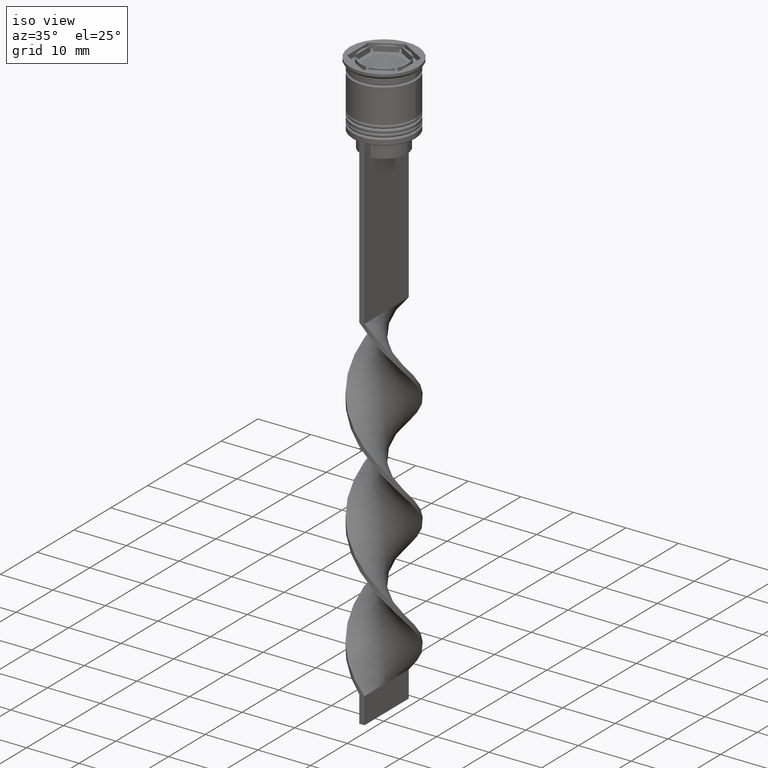
[diagram: clean part render]
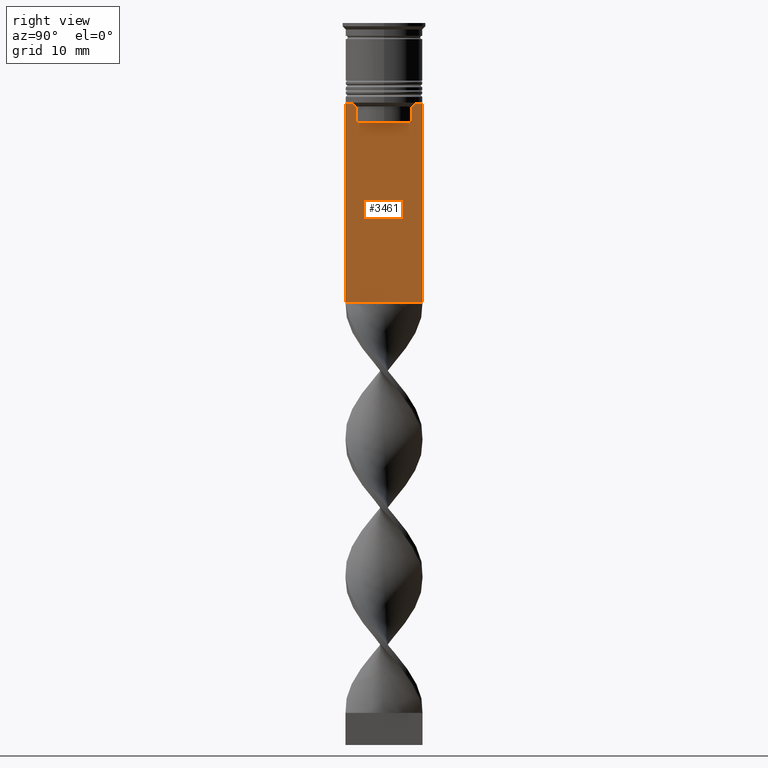
[diagram: tour spotlight — one face highlighted and labeled with its STEP entity id]
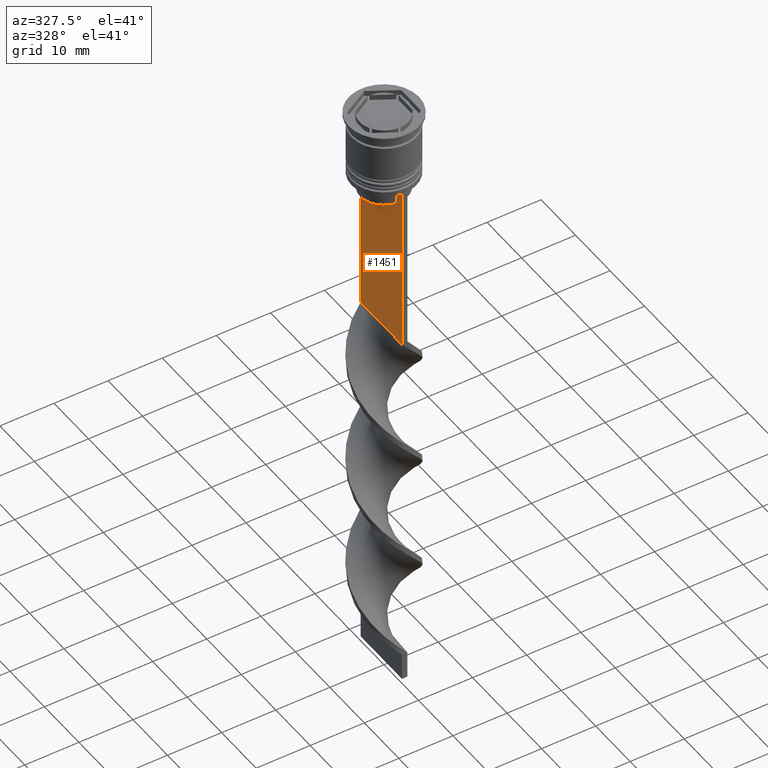
[diagram: tour spotlight — one face highlighted and labeled with its STEP entity id]
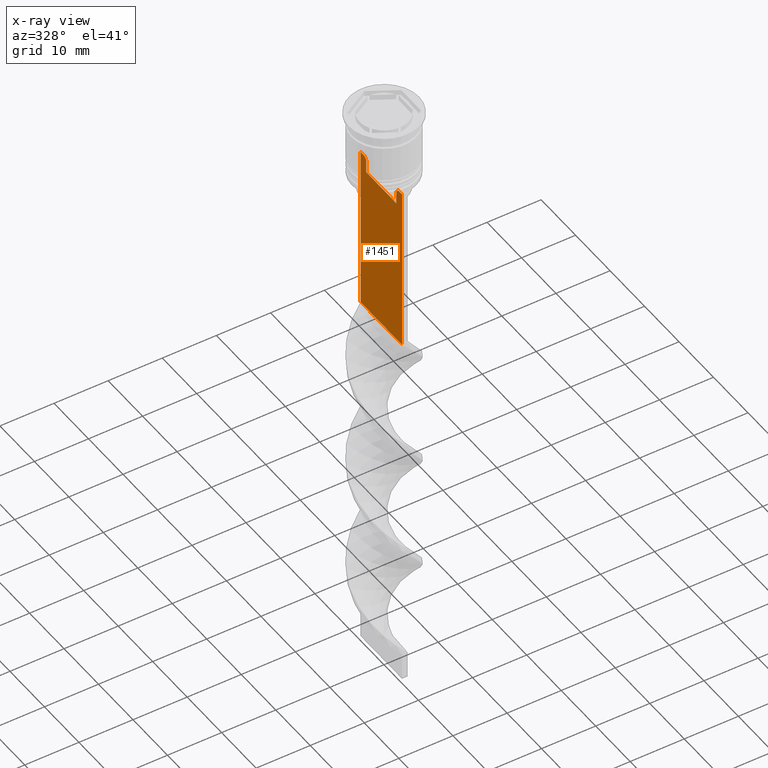
[diagram: x-ray of the same camera — body ghosted, this tour face saturated]
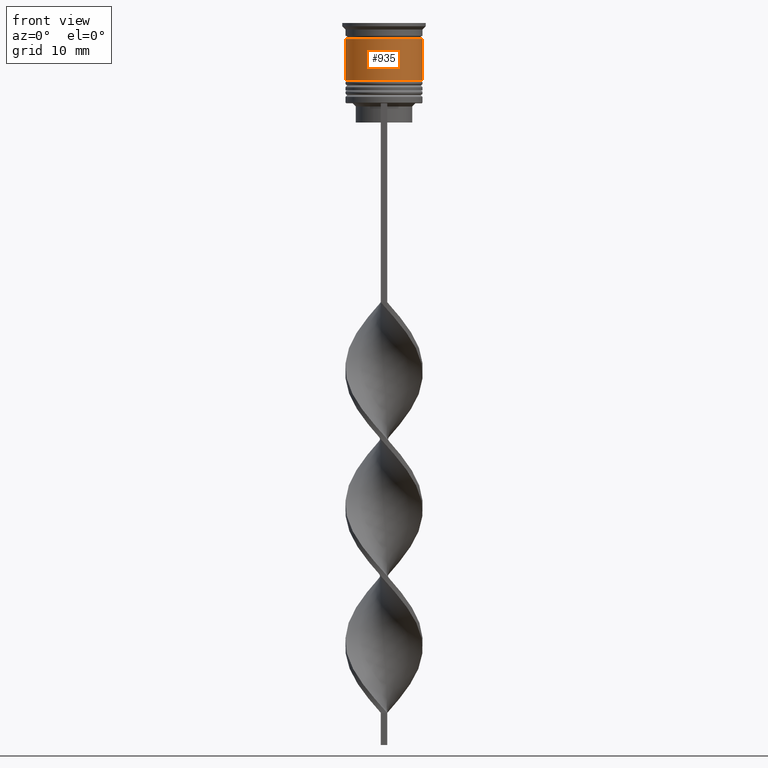
[diagram: tour spotlight — one face highlighted and labeled with its STEP entity id]
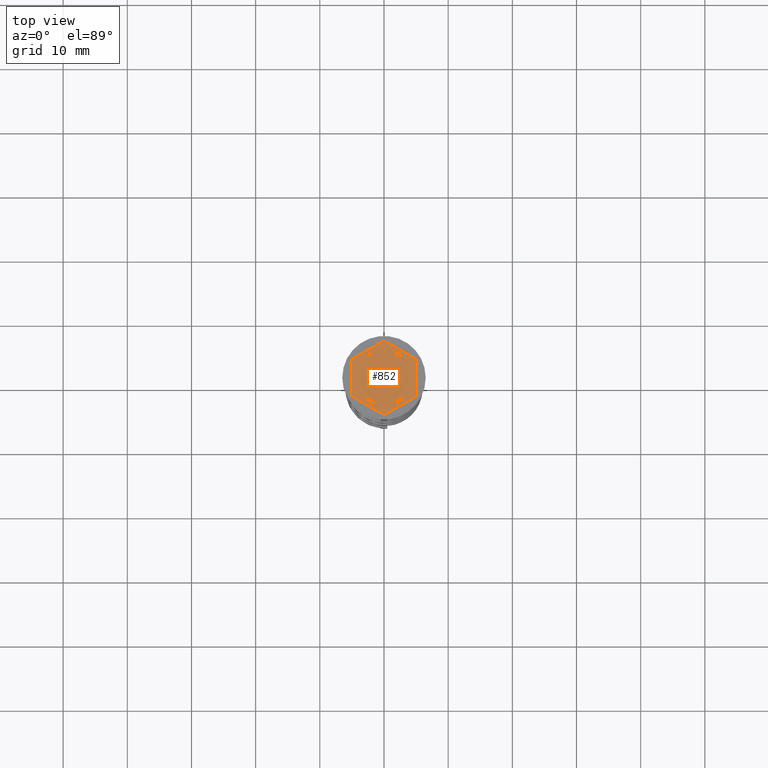
[diagram: tour spotlight — one face highlighted and labeled with its STEP entity id]
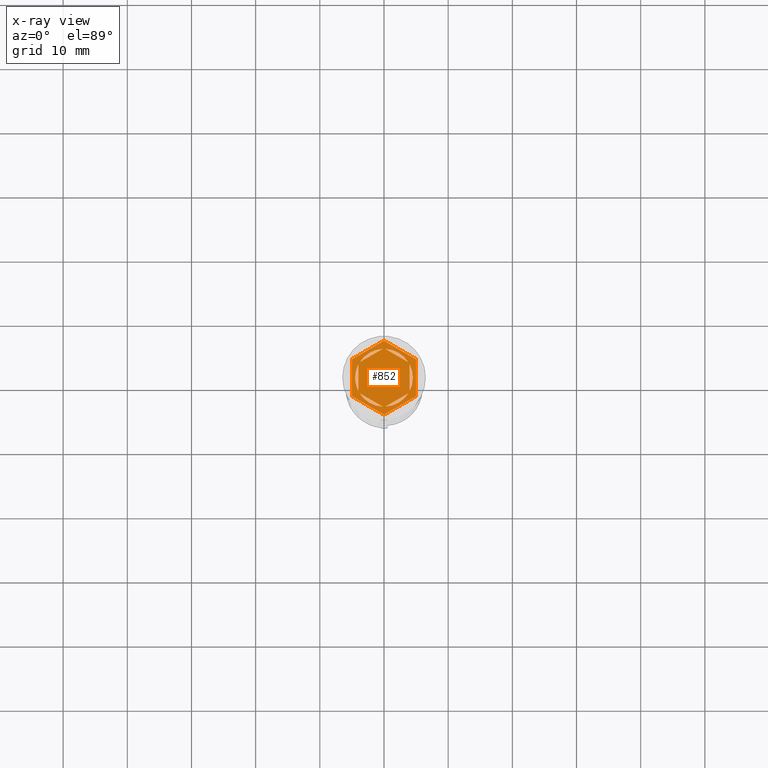
[diagram: x-ray of the same camera — body ghosted, this tour face saturated]
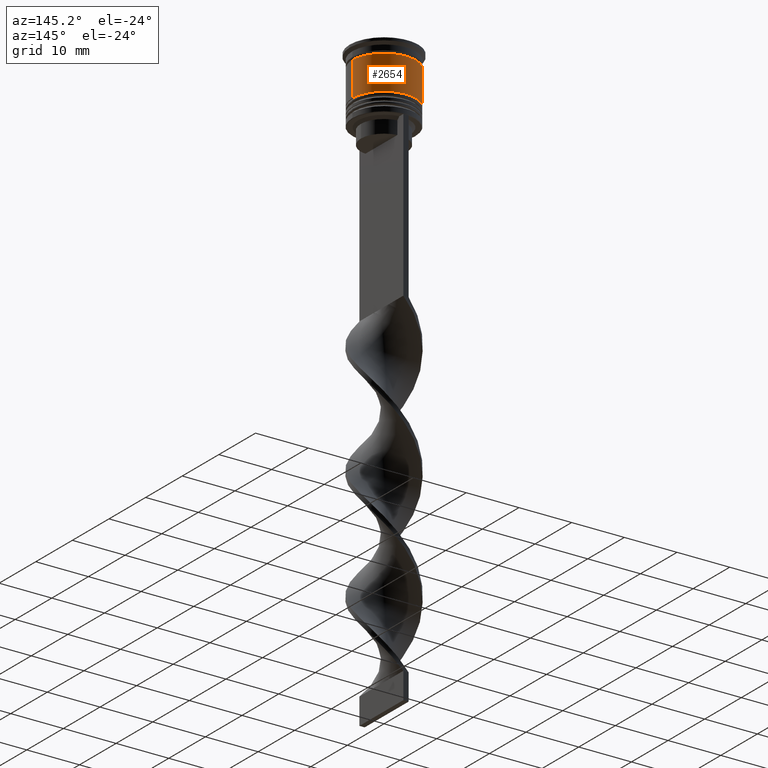
[diagram: tour spotlight — one face highlighted and labeled with its STEP entity id]
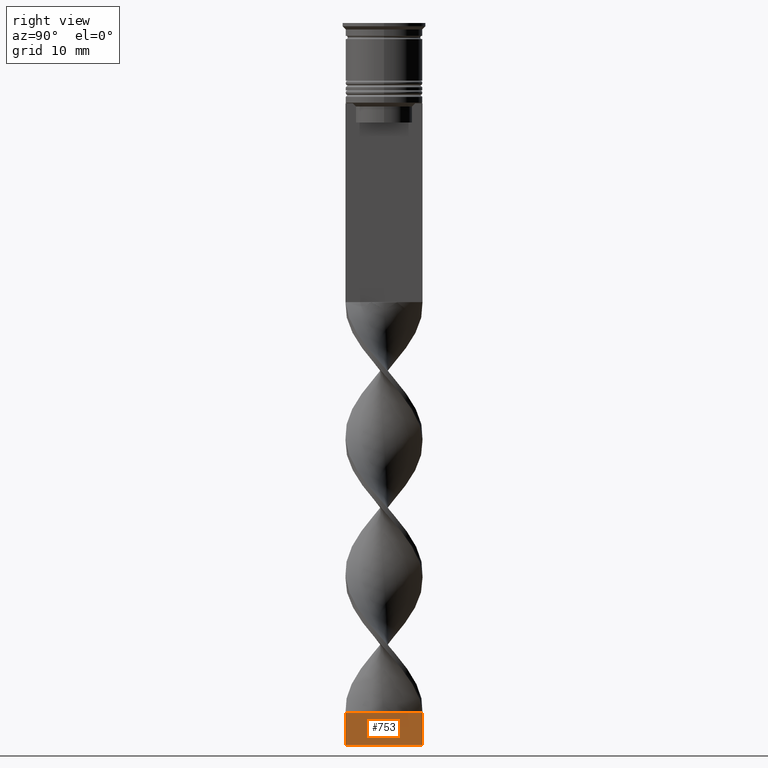
[diagram: tour spotlight — one face highlighted and labeled with its STEP entity id]
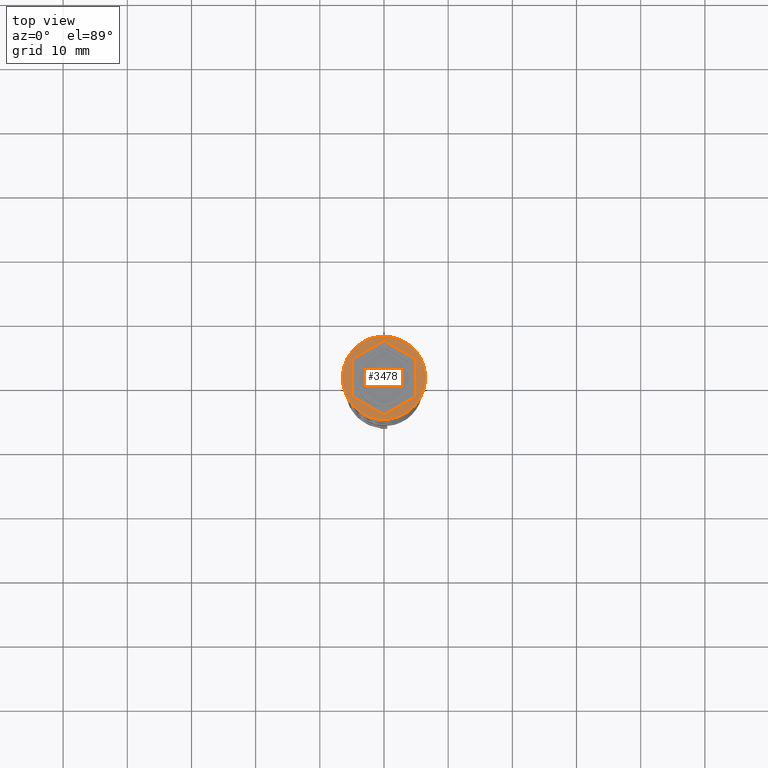
[diagram: tour spotlight — one face highlighted and labeled with its STEP entity id]
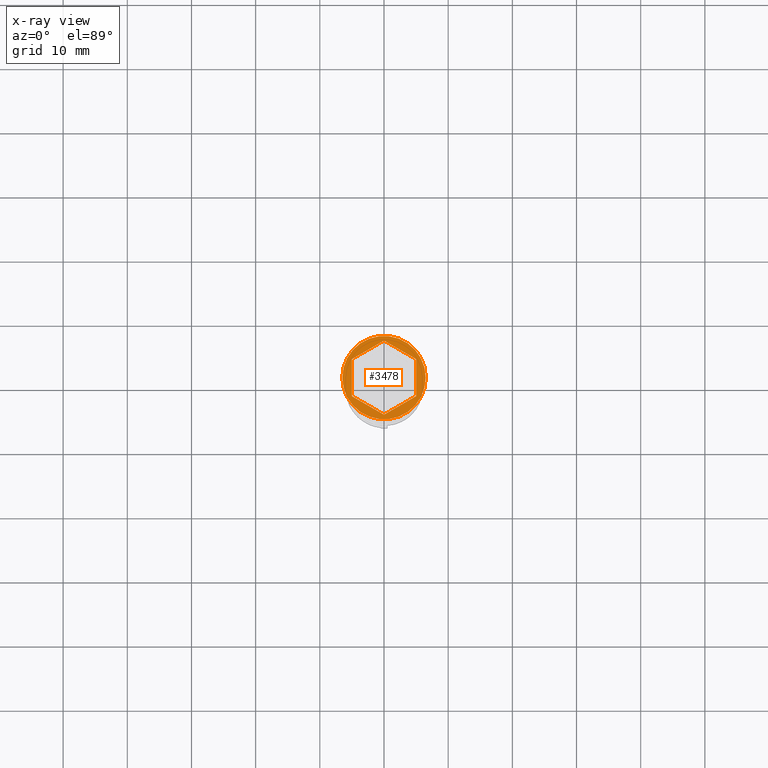
[diagram: x-ray of the same camera — body ghosted, this tour face saturated]
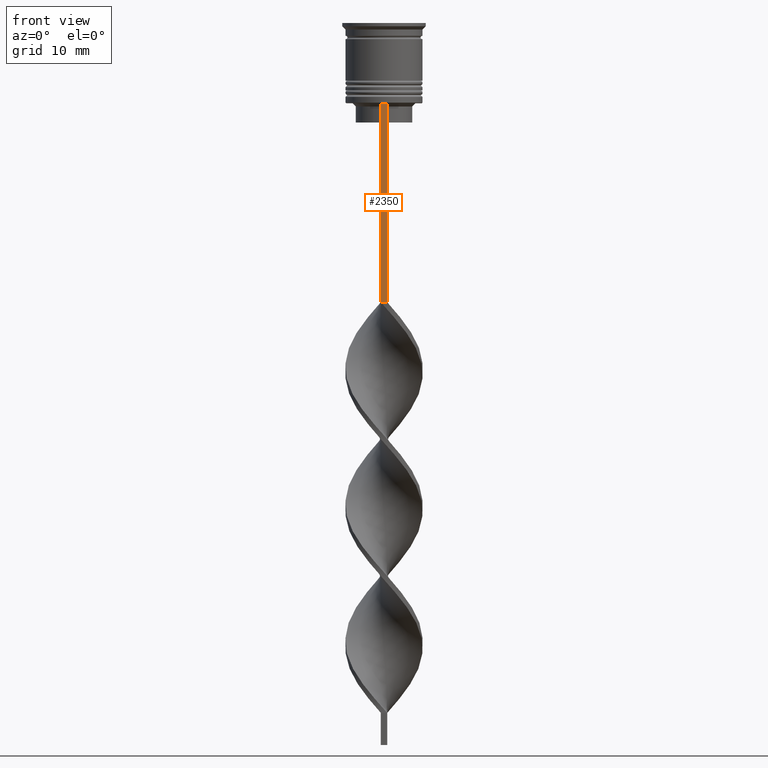
[diagram: tour spotlight — one face highlighted and labeled with its STEP entity id]
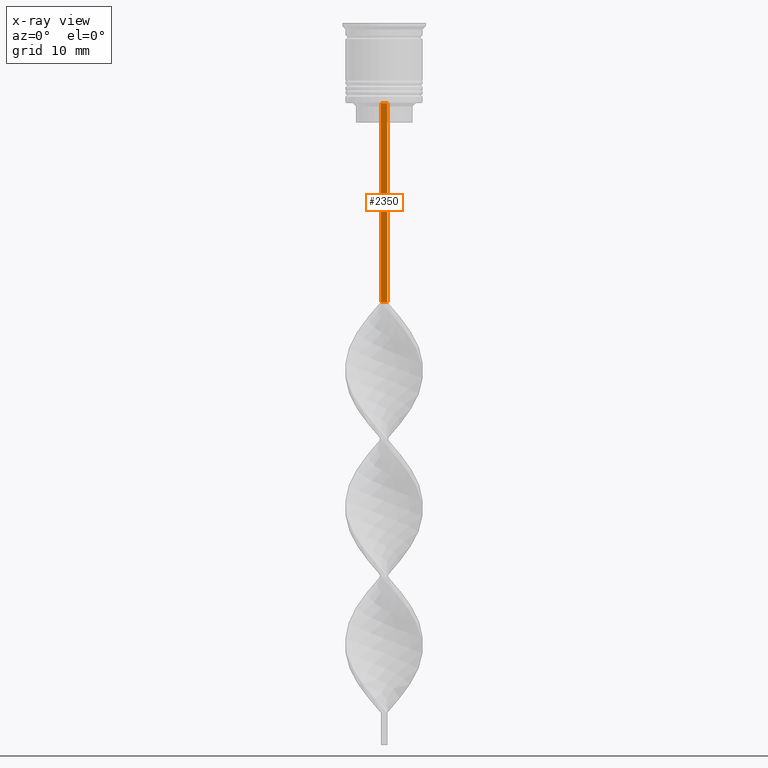
[diagram: x-ray of the same camera — body ghosted, this tour face saturated]
A machine part: a face-by-face anatomy tour. The part has 98 B-rep faces; the first image is the clean iso view, then the 8 largest visible faces are spotlighted one at a time (largest first), each with its STEP entity span.

Face 1 — right view, entity #3461. In plain terms, the highlighted planar face has unit normal (-1, 0, 0).
Definition (entity closure, byte-faithful):
#13 = CARTESIAN_POINT ( 'NONE',  ( 0.5000000000000002220, 6.000000000000000888, -43.50000000000000000 ) ) ;
#56 = ORIENTED_EDGE ( 'NONE', *, *, #2985, .T. ) ;
#80 = LINE ( 'NONE', #1415, #818 ) ;
#96 = CARTESIAN_POINT ( 'NONE',  ( 0.5000000000000002220, -4.371498598878878816, -13.00000000000000178 ) ) ;
#119 = EDGE_CURVE ( 'NONE', #781, #3070, #80, .T. ) ;
#139 = VECTOR ( 'NONE', #1219, 1000.000000000000000 ) ;
#151 = CARTESIAN_POINT ( 'NONE',  ( 0.5000000000000002220, -4.371498598878878816, 0.000000000000000000 ) ) ;
#227 = EDGE_CURVE ( 'NONE', #3070, #1343, #2359, .T. ) ;
#283 = CARTESIAN_POINT ( 'NONE',  ( 0.5000000000000002220, 4.874423042781576676, -12.50000000000000000 ) ) ;
#322 = VERTEX_POINT ( 'NONE', #1308 ) ;
#326 = ORIENTED_EDGE ( 'NONE', *, *, #2742, .T. ) ;
#347 = CARTESIAN_POINT ( 'NONE',  ( 0.5000000000000002220, 4.706831415367288329, -12.66671683478479160 ) ) ;
#352 = VECTOR ( 'NONE', #3142, 1000.000000000000000 ) ;
#444 = LINE ( 'NONE', #1009, #2346 ) ;
#445 = B_SPLINE_CURVE_WITH_KNOTS ( 'NONE', 3,
 ( #527, #550, #2749, #2769 ),
 .UNSPECIFIED., .F., .F.,
 ( 4, 4 ),
 ( 0.02089901220910808308, 0.02161421017310286019 ),
 .UNSPECIFIED. ) ;
#527 = CARTESIAN_POINT ( 'NONE',  ( 0.5000000000000002220, -4.371498598878878816, -13.00000000000000178 ) ) ;
#550 = CARTESIAN_POINT ( 'NONE',  ( 0.5000000000000002220, -4.539195586926423331, -12.83338928448044314 ) ) ;
#627 = EDGE_CURVE ( 'NONE', #3307, #781, #2087, .T. ) ;
#650 = EDGE_CURVE ( 'NONE', #2213, #2377, #2105, .T. ) ;
#718 = EDGE_CURVE ( 'NONE', #1465, #3111, #1213, .T. ) ;
#750 = ORIENTED_EDGE ( 'NONE', *, *, #718, .T. ) ;
#768 = ORIENTED_EDGE ( 'NONE', *, *, #2919, .T. ) ;
#781 = VERTEX_POINT ( 'NONE', #2478 ) ;
#804 = CARTESIAN_POINT ( 'NONE',  ( 0.5000000000000002220, 4.371498598878878816, -13.00000000000000178 ) ) ;
#818 = VECTOR ( 'NONE', #3415, 1000.000000000000000 ) ;
#888 = VECTOR ( 'NONE', #2010, 1000.000000000000000 ) ;
#962 = ORIENTED_EDGE ( 'NONE', *, *, #627, .T. ) ;
#965 = VERTEX_POINT ( 'NONE', #2309 ) ;
#980 = DIRECTION ( 'NONE',  ( -0.000000000000000000, -0.000000000000000000, 1.000000000000000000 ) ) ;
#997 = LINE ( 'NONE', #2406, #139 ) ;
#998 = VERTEX_POINT ( 'NONE', #13 ) ;
#1009 = CARTESIAN_POINT ( 'NONE',  ( 0.5000000000000002220, -6.000000000000000000, -43.50000000000000000 ) ) ;
#1058 = VECTOR ( 'NONE', #1202, 1000.000000000000000 ) ;
#1063 = DIRECTION ( 'NONE',  ( 0.000000000000000000, -1.000000000000000000, 0.000000000000000000 ) ) ;
#1126 = CARTESIAN_POINT ( 'NONE',  ( 0.5000000000000002220, 5.878775382679627626, -12.50000000000000000 ) ) ;
#1167 = VECTOR ( 'NONE', #1787, 1000.000000000000000 ) ;
#1182 = DIRECTION ( 'NONE',  ( -1.000000000000000000, 0.000000000000000000, 0.000000000000000000 ) ) ;
#1202 = DIRECTION ( 'NONE',  ( 0.000000000000000000, 0.000000000000000000, -1.000000000000000000 ) ) ;
#1213 = LINE ( 'NONE', #2641, #3032 ) ;
#1219 = DIRECTION ( 'NONE',  ( 0.000000000000000000, 0.000000000000000000, -1.000000000000000000 ) ) ;
#1240 = CARTESIAN_POINT ( 'NONE',  ( 0.5000000000000002220, -4.371498598878878816, -15.50000000000000000 ) ) ;
#1262 = DIRECTION ( 'NONE',  ( 0.000000000000000000, 1.000000000000000000, 0.000000000000000000 ) ) ;
#1308 = CARTESIAN_POINT ( 'NONE',  ( 0.5000000000000002220, -5.999999999999999112, -43.50000000000000000 ) ) ;
#1311 = CARTESIAN_POINT ( 'NONE',  ( 0.5000000000000002220, 6.000000000000000888, -12.50000000000000000 ) ) ;
#1343 = VERTEX_POINT ( 'NONE', #96 ) ;
#1351 = EDGE_CURVE ( 'NONE', #3111, #322, #2575, .T. ) ;
#1415 = CARTESIAN_POINT ( 'NONE',  ( 0.5000000000000002220, 4.399999999999999467, -15.50000000000000000 ) ) ;
#1440 = PLANE ( 'NONE',  #2470 ) ;
#1458 = CARTESIAN_POINT ( 'NONE',  ( 0.5000000000000002220, 4.539195634199896467, -12.83338923751318816 ) ) ;
#1465 = VERTEX_POINT ( 'NONE', #3310 ) ;
#1513 = CARTESIAN_POINT ( 'NONE',  ( 0.5000000000000002220, -6.000000000000000000, -12.50000000000000000 ) ) ;
#1537 = ORIENTED_EDGE ( 'NONE', *, *, #119, .T. ) ;
#1678 = FACE_OUTER_BOUND ( 'NONE', #3107, .T. ) ;
#1728 = ORIENTED_EDGE ( 'NONE', *, *, #1351, .T. ) ;
#1738 = ORIENTED_EDGE ( 'NONE', *, *, #1903, .T. ) ;
#1787 = DIRECTION ( 'NONE',  ( 0.000000000000000000, 0.000000000000000000, -1.000000000000000000 ) ) ;
#1789 = ORIENTED_EDGE ( 'NONE', *, *, #227, .T. ) ;
#1903 = EDGE_CURVE ( 'NONE', #322, #998, #444, .T. ) ;
#1977 = LINE ( 'NONE', #3084, #888 ) ;
#2009 = CARTESIAN_POINT ( 'NONE',  ( 0.5000000000000002220, -6.000000000000000000, -0.4584054212077061097 ) ) ;
#2010 = DIRECTION ( 'NONE',  ( 0.000000000000000000, -1.000000000000000000, 0.000000000000000000 ) ) ;
#2023 = CARTESIAN_POINT ( 'NONE',  ( 0.5000000000000002220, -6.000000000000000000, -0.4584054212077061097 ) ) ;
#2087 = LINE ( 'NONE', #2906, #1167 ) ;
#2105 = LINE ( 'NONE', #2379, #352 ) ;
#2211 = LINE ( 'NONE', #3301, #2586 ) ;
#2213 = VERTEX_POINT ( 'NONE', #1126 ) ;
#2243 = ORIENTED_EDGE ( 'NONE', *, *, #650, .T. ) ;
#2278 = VECTOR ( 'NONE', #980, 1000.000000000000000 ) ;
#2309 = CARTESIAN_POINT ( 'NONE',  ( 0.5000000000000002220, -4.874423042781576676, -12.50000000000000000 ) ) ;
#2346 = VECTOR ( 'NONE', #1262, 1000.000000000000000 ) ;
#2359 = LINE ( 'NONE', #151, #2278 ) ;
#2377 = VERTEX_POINT ( 'NONE', #283 ) ;
#2379 = CARTESIAN_POINT ( 'NONE',  ( 0.5000000000000002220, -6.000000000000000000, -12.50000000000000000 ) ) ;
#2406 = CARTESIAN_POINT ( 'NONE',  ( 0.5000000000000002220, 6.000000000000000888, -0.4584054212077061097 ) ) ;
#2470 = AXIS2_PLACEMENT_3D ( 'NONE', #2023, #1182, #2837 ) ;
#2472 = B_SPLINE_CURVE_WITH_KNOTS ( 'NONE', 3,
 ( #2557, #347, #1458, #2577 ),
 .UNSPECIFIED., .F., .F.,
 ( 4, 4 ),
 ( 0.008336552452178421987, 0.009045730124312839626 ),
 .UNSPECIFIED. ) ;
#2478 = CARTESIAN_POINT ( 'NONE',  ( 0.5000000000000002220, 4.371498598878878816, -15.50000000000000000 ) ) ;
#2557 = CARTESIAN_POINT ( 'NONE',  ( 0.5000000000000002220, 4.874423042781576676, -12.50000000000000000 ) ) ;
#2573 = ORIENTED_EDGE ( 'NONE', *, *, #3365, .T. ) ;
#2575 = LINE ( 'NONE', #2009, #1058 ) ;
#2577 = CARTESIAN_POINT ( 'NONE',  ( 0.5000000000000002220, 4.371498598878878816, -13.00000000000000178 ) ) ;
#2586 = VECTOR ( 'NONE', #1063, 1000.000000000000000 ) ;
#2621 = DIRECTION ( 'NONE',  ( 0.000000000000000000, -1.000000000000000000, 0.000000000000000000 ) ) ;
#2641 = CARTESIAN_POINT ( 'NONE',  ( 0.5000000000000002220, -6.000000000000000000, -12.50000000000000000 ) ) ;
#2742 = EDGE_CURVE ( 'NONE', #965, #1465, #2211, .T. ) ;
#2749 = CARTESIAN_POINT ( 'NONE',  ( 0.5000000000000002220, -4.706831372970962768, -12.66671687695981774 ) ) ;
#2769 = CARTESIAN_POINT ( 'NONE',  ( 0.5000000000000002220, -4.874423042781576676, -12.50000000000000000 ) ) ;
#2837 = DIRECTION ( 'NONE',  ( 0.000000000000000000, 0.000000000000000000, 1.000000000000000000 ) ) ;
#2906 = CARTESIAN_POINT ( 'NONE',  ( 0.5000000000000002220, 4.371498598878878816, 0.000000000000000000 ) ) ;
#2919 = EDGE_CURVE ( 'NONE', #3302, #2213, #1977, .T. ) ;
#2985 = EDGE_CURVE ( 'NONE', #2377, #3307, #2472, .T. ) ;
#3032 = VECTOR ( 'NONE', #2621, 1000.000000000000000 ) ;
#3070 = VERTEX_POINT ( 'NONE', #1240 ) ;
#3079 = EDGE_CURVE ( 'NONE', #3302, #998, #997, .T. ) ;
#3084 = CARTESIAN_POINT ( 'NONE',  ( 0.5000000000000002220, -6.000000000000000000, -12.50000000000000000 ) ) ;
#3107 = EDGE_LOOP ( 'NONE', ( #2243, #56, #962, #1537, #1789, #2573, #326, #750, #1728, #1738, #3288, #768 ) ) ;
#3111 = VERTEX_POINT ( 'NONE', #1513 ) ;
#3142 = DIRECTION ( 'NONE',  ( 0.000000000000000000, -1.000000000000000000, 0.000000000000000000 ) ) ;
#3288 = ORIENTED_EDGE ( 'NONE', *, *, #3079, .F. ) ;
#3301 = CARTESIAN_POINT ( 'NONE',  ( 0.5000000000000002220, -6.000000000000000000, -12.50000000000000000 ) ) ;
#3302 = VERTEX_POINT ( 'NONE', #1311 ) ;
#3307 = VERTEX_POINT ( 'NONE', #804 ) ;
#3310 = CARTESIAN_POINT ( 'NONE',  ( 0.5000000000000002220, -5.878775382679627626, -12.50000000000000000 ) ) ;
#3365 = EDGE_CURVE ( 'NONE', #1343, #965, #445, .T. ) ;
#3415 = DIRECTION ( 'NONE',  ( 0.000000000000000000, -1.000000000000000000, 0.000000000000000000 ) ) ;
#3461 = ADVANCED_FACE ( 'NONE', ( #1678 ), #1440, .F. ) ;

Face 2 — auxiliary view, entity #1451. An x-ray twin of the same camera follows (body ghosted, this face saturated) — the face is partly hidden behind the body. In plain terms, the highlighted planar face has unit normal (-1, 0, 0).
Definition (entity closure, byte-faithful):
#5 = EDGE_CURVE ( 'NONE', #2252, #2817, #107, .T. ) ;
#37 = LINE ( 'NONE', #841, #3256 ) ;
#107 = B_SPLINE_CURVE_WITH_KNOTS ( 'NONE', 3,
 ( #299, #3152, #1206, #2043 ),
 .UNSPECIFIED., .F., .F.,
 ( 4, 4 ),
 ( 0.008336552452178418518, 0.009045730124312837891 ),
 .UNSPECIFIED. ) ;
#214 = CARTESIAN_POINT ( 'NONE',  ( -0.4999999999999997780, 4.874423042781576676, -12.50000000000000000 ) ) ;
#278 = LINE ( 'NONE', #863, #2460 ) ;
#280 = ORIENTED_EDGE ( 'NONE', *, *, #1296, .F. ) ;
#295 = EDGE_CURVE ( 'NONE', #2554, #462, #3195, .T. ) ;
#299 = CARTESIAN_POINT ( 'NONE',  ( -0.4999999999999997780, 4.874423042781576676, -12.50000000000000000 ) ) ;
#417 = DIRECTION ( 'NONE',  ( -0.000000000000000000, -0.000000000000000000, 1.000000000000000000 ) ) ;
#461 = CARTESIAN_POINT ( 'NONE',  ( -0.4999999999999997780, -6.000000000000000000, -12.50000000000000000 ) ) ;
#462 = VERTEX_POINT ( 'NONE', #2021 ) ;
#566 = EDGE_CURVE ( 'NONE', #2817, #844, #37, .T. ) ;
#567 = DIRECTION ( 'NONE',  ( 0.000000000000000000, 0.000000000000000000, -1.000000000000000000 ) ) ;
#575 = ORIENTED_EDGE ( 'NONE', *, *, #5, .F. ) ;
#590 = EDGE_CURVE ( 'NONE', #1105, #2180, #2783, .T. ) ;
#602 = CARTESIAN_POINT ( 'NONE',  ( -0.4999999999999997780, -6.000000000000000000, -12.50000000000000000 ) ) ;
#606 = EDGE_LOOP ( 'NONE', ( #575, #2842, #2683, #3563, #280, #3465, #1070, #2978, #2744, #1129, #775, #3303 ) ) ;
#644 = CARTESIAN_POINT ( 'NONE',  ( -0.4999999999999997780, 4.399999999999999467, -15.50000000000000000 ) ) ;
#757 = DIRECTION ( 'NONE',  ( 0.000000000000000000, 0.000000000000000000, -1.000000000000000000 ) ) ;
#775 = ORIENTED_EDGE ( 'NONE', *, *, #2548, .F. ) ;
#807 = CARTESIAN_POINT ( 'NONE',  ( -0.4999999999999997780, -6.000000000000000000, -12.50000000000000000 ) ) ;
#810 = EDGE_CURVE ( 'NONE', #2180, #2252, #2668, .T. ) ;
#841 = CARTESIAN_POINT ( 'NONE',  ( -0.4999999999999997780, 4.371498598878878816, 0.000000000000000000 ) ) ;
#844 = VERTEX_POINT ( 'NONE', #1087 ) ;
#860 = DIRECTION ( 'NONE',  ( -1.000000000000000000, 0.000000000000000000, 0.000000000000000000 ) ) ;
#863 = CARTESIAN_POINT ( 'NONE',  ( -0.4999999999999997780, -6.000000000000000000, -12.50000000000000000 ) ) ;
#917 = EDGE_CURVE ( 'NONE', #1105, #3364, #1342, .T. ) ;
#953 = LINE ( 'NONE', #1128, #2746 ) ;
#957 = B_SPLINE_CURVE_WITH_KNOTS ( 'NONE', 3,
 ( #2229, #3339, #3065, #1354 ),
 .UNSPECIFIED., .F., .F.,
 ( 4, 4 ),
 ( 0.02089901220910806920, 0.02161421017310284978 ),
 .UNSPECIFIED. ) ;
#1070 = ORIENTED_EDGE ( 'NONE', *, *, #1744, .F. ) ;
#1087 = CARTESIAN_POINT ( 'NONE',  ( -0.4999999999999997780, 4.371498598878878816, -15.50000000000000000 ) ) ;
#1105 = VERTEX_POINT ( 'NONE', #2884 ) ;
#1116 = DIRECTION ( 'NONE',  ( 0.000000000000000000, 1.000000000000000000, 0.000000000000000000 ) ) ;
#1128 = CARTESIAN_POINT ( 'NONE',  ( -0.4999999999999997780, -6.000000000000000000, -0.4584054212077061097 ) ) ;
#1129 = ORIENTED_EDGE ( 'NONE', *, *, #295, .F. ) ;
#1206 = CARTESIAN_POINT ( 'NONE',  ( -0.4999999999999997780, 4.539195634199897356, -12.83338923751318816 ) ) ;
#1225 = EDGE_CURVE ( 'NONE', #3319, #2774, #278, .T. ) ;
#1296 = EDGE_CURVE ( 'NONE', #3313, #3364, #1938, .T. ) ;
#1312 = VERTEX_POINT ( 'NONE', #807 ) ;
#1316 = EDGE_CURVE ( 'NONE', #462, #3319, #957, .T. ) ;
#1342 = LINE ( 'NONE', #1558, #1636 ) ;
#1354 = CARTESIAN_POINT ( 'NONE',  ( -0.4999999999999997780, -4.874423042781576676, -12.50000000000000000 ) ) ;
#1403 = FACE_OUTER_BOUND ( 'NONE', #606, .T. ) ;
#1409 = AXIS2_PLACEMENT_3D ( 'NONE', #3552, #860, #3591 ) ;
#1416 = VECTOR ( 'NONE', #1727, 1000.000000000000000 ) ;
#1451 = ADVANCED_FACE ( 'NONE', ( #1403 ), #2443, .T. ) ;
#1466 = VECTOR ( 'NONE', #2344, 1000.000000000000000 ) ;
#1558 = CARTESIAN_POINT ( 'NONE',  ( -0.4999999999999997780, 6.000000000000000888, -0.4584054212077061097 ) ) ;
#1636 = VECTOR ( 'NONE', #757, 1000.000000000000000 ) ;
#1727 = DIRECTION ( 'NONE',  ( 0.000000000000000000, -1.000000000000000000, 0.000000000000000000 ) ) ;
#1744 = EDGE_CURVE ( 'NONE', #2774, #1312, #2360, .T. ) ;
#1759 = DIRECTION ( 'NONE',  ( 0.000000000000000000, 0.000000000000000000, -1.000000000000000000 ) ) ;
#1772 = EDGE_CURVE ( 'NONE', #1312, #3313, #953, .T. ) ;
#1938 = LINE ( 'NONE', #3083, #2394 ) ;
#2021 = CARTESIAN_POINT ( 'NONE',  ( -0.4999999999999997780, -4.371498598878878816, -13.00000000000000178 ) ) ;
#2043 = CARTESIAN_POINT ( 'NONE',  ( -0.4999999999999997780, 4.371498598878878816, -13.00000000000000178 ) ) ;
#2048 = CARTESIAN_POINT ( 'NONE',  ( -0.4999999999999997780, -4.371498598878878816, -15.50000000000000000 ) ) ;
#2099 = VECTOR ( 'NONE', #3271, 1000.000000000000000 ) ;
#2180 = VERTEX_POINT ( 'NONE', #2999 ) ;
#2229 = CARTESIAN_POINT ( 'NONE',  ( -0.4999999999999997780, -4.371498598878878816, -13.00000000000000178 ) ) ;
#2250 = DIRECTION ( 'NONE',  ( 0.000000000000000000, -1.000000000000000000, 0.000000000000000000 ) ) ;
#2252 = VERTEX_POINT ( 'NONE', #214 ) ;
#2310 = LINE ( 'NONE', #644, #1416 ) ;
#2344 = DIRECTION ( 'NONE',  ( 0.000000000000000000, -1.000000000000000000, 0.000000000000000000 ) ) ;
#2360 = LINE ( 'NONE', #3471, #1466 ) ;
#2394 = VECTOR ( 'NONE', #1116, 1000.000000000000000 ) ;
#2423 = CARTESIAN_POINT ( 'NONE',  ( -0.4999999999999997780, -4.874423042781576676, -12.50000000000000000 ) ) ;
#2443 = PLANE ( 'NONE',  #1409 ) ;
#2460 = VECTOR ( 'NONE', #2250, 1000.000000000000000 ) ;
#2548 = EDGE_CURVE ( 'NONE', #844, #2554, #2310, .T. ) ;
#2554 = VERTEX_POINT ( 'NONE', #2048 ) ;
#2668 = LINE ( 'NONE', #461, #2099 ) ;
#2683 = ORIENTED_EDGE ( 'NONE', *, *, #590, .F. ) ;
#2744 = ORIENTED_EDGE ( 'NONE', *, *, #1316, .F. ) ;
#2746 = VECTOR ( 'NONE', #1759, 1000.000000000000000 ) ;
#2755 = CARTESIAN_POINT ( 'NONE',  ( -0.4999999999999997780, 4.371498598878878816, -13.00000000000000178 ) ) ;
#2774 = VERTEX_POINT ( 'NONE', #3560 ) ;
#2783 = LINE ( 'NONE', #602, #3377 ) ;
#2817 = VERTEX_POINT ( 'NONE', #2755 ) ;
#2821 = DIRECTION ( 'NONE',  ( 0.000000000000000000, -1.000000000000000000, 0.000000000000000000 ) ) ;
#2842 = ORIENTED_EDGE ( 'NONE', *, *, #810, .F. ) ;
#2884 = CARTESIAN_POINT ( 'NONE',  ( -0.4999999999999997780, 6.000000000000001776, -12.50000000000000000 ) ) ;
#2978 = ORIENTED_EDGE ( 'NONE', *, *, #1225, .F. ) ;
#2999 = CARTESIAN_POINT ( 'NONE',  ( -0.4999999999999997780, 5.878775382679627626, -12.50000000000000000 ) ) ;
#3065 = CARTESIAN_POINT ( 'NONE',  ( -0.4999999999999997780, -4.706831372970964544, -12.66671687695981596 ) ) ;
#3083 = CARTESIAN_POINT ( 'NONE',  ( -0.4999999999999997780, -6.000000000000000000, -43.50000000000000000 ) ) ;
#3088 = VECTOR ( 'NONE', #417, 1000.000000000000000 ) ;
#3152 = CARTESIAN_POINT ( 'NONE',  ( -0.4999999999999997780, 4.706831415367290106, -12.66671683478478982 ) ) ;
#3195 = LINE ( 'NONE', #3480, #3088 ) ;
#3232 = CARTESIAN_POINT ( 'NONE',  ( -0.4999999999999997780, -6.000000000000000000, -43.50000000000000000 ) ) ;
#3256 = VECTOR ( 'NONE', #567, 1000.000000000000000 ) ;
#3271 = DIRECTION ( 'NONE',  ( 0.000000000000000000, -1.000000000000000000, 0.000000000000000000 ) ) ;
#3303 = ORIENTED_EDGE ( 'NONE', *, *, #566, .F. ) ;
#3313 = VERTEX_POINT ( 'NONE', #3232 ) ;
#3319 = VERTEX_POINT ( 'NONE', #2423 ) ;
#3339 = CARTESIAN_POINT ( 'NONE',  ( -0.4999999999999997780, -4.539195586926424220, -12.83338928448044136 ) ) ;
#3364 = VERTEX_POINT ( 'NONE', #3534 ) ;
#3377 = VECTOR ( 'NONE', #2821, 1000.000000000000000 ) ;
#3465 = ORIENTED_EDGE ( 'NONE', *, *, #1772, .F. ) ;
#3471 = CARTESIAN_POINT ( 'NONE',  ( -0.4999999999999997780, -6.000000000000000000, -12.50000000000000000 ) ) ;
#3480 = CARTESIAN_POINT ( 'NONE',  ( -0.4999999999999997780, -4.371498598878878816, 0.000000000000000000 ) ) ;
#3534 = CARTESIAN_POINT ( 'NONE',  ( -0.4999999999999997780, 6.000000000000000888, -43.50000000000000000 ) ) ;
#3552 = CARTESIAN_POINT ( 'NONE',  ( -0.4999999999999997780, -6.000000000000000000, -0.4584054212077061097 ) ) ;
#3560 = CARTESIAN_POINT ( 'NONE',  ( -0.4999999999999997780, -5.878775382679627626, -12.50000000000000000 ) ) ;
#3563 = ORIENTED_EDGE ( 'NONE', *, *, #917, .T. ) ;
#3591 = DIRECTION ( 'NONE',  ( 0.000000000000000000, 0.000000000000000000, 1.000000000000000000 ) ) ;

Face 3 — front view, entity #935. In plain terms, the highlighted cylindrical surface (partial cylindrical patch) has radius 6 mm, axis along (-0, -0, 1).
Definition (entity closure, byte-faithful):
#115 = DIRECTION ( 'NONE',  ( -0.000000000000000000, -0.000000000000000000, 1.000000000000000000 ) ) ;
#485 = ORIENTED_EDGE ( 'NONE', *, *, #2612, .F. ) ;
#521 = DIRECTION ( 'NONE',  ( -0.000000000000000000, -0.000000000000000000, 1.000000000000000000 ) ) ;
#552 = VERTEX_POINT ( 'NONE', #3354 ) ;
#707 = CIRCLE ( 'NONE', #3146, 6.000000000000000888 ) ;
#713 = CIRCLE ( 'NONE', #2107, 5.999999999999999112 ) ;
#777 = VECTOR ( 'NONE', #115, 1000.000000000000000 ) ;
#935 = ADVANCED_FACE ( 'NONE', ( #1324 ), #3291, .T. ) ;
#1210 = LINE ( 'NONE', #2831, #3450 ) ;
#1324 = FACE_OUTER_BOUND ( 'NONE', #2490, .T. ) ;
#1446 = DIRECTION ( 'NONE',  ( -0.000000000000000000, -0.000000000000000000, 1.000000000000000000 ) ) ;
#1503 = CARTESIAN_POINT ( 'NONE',  ( 0.000000000000000000, 0.000000000000000000, -2.500000000000000444 ) ) ;
#1510 = VERTEX_POINT ( 'NONE', #2458 ) ;
#1536 = CARTESIAN_POINT ( 'NONE',  ( -6.000000000000000000, 7.347880794884119736E-16, 0.000000000000000000 ) ) ;
#1607 = EDGE_CURVE ( 'NONE', #552, #3268, #707, .T. ) ;
#1679 = VERTEX_POINT ( 'NONE', #2630 ) ;
#1865 = ORIENTED_EDGE ( 'NONE', *, *, #3078, .F. ) ;
#1950 = DIRECTION ( 'NONE',  ( 1.000000000000000000, 0.000000000000000000, 0.000000000000000000 ) ) ;
#2041 = AXIS2_PLACEMENT_3D ( 'NONE', #3016, #521, #1950 ) ;
#2065 = LINE ( 'NONE', #1536, #777 ) ;
#2107 = AXIS2_PLACEMENT_3D ( 'NONE', #1503, #3361, #2270 ) ;
#2142 = CARTESIAN_POINT ( 'NONE',  ( 0.000000000000000000, 0.000000000000000000, -9.000000000000001776 ) ) ;
#2268 = ORIENTED_EDGE ( 'NONE', *, *, #1607, .T. ) ;
#2270 = DIRECTION ( 'NONE',  ( 1.000000000000000000, 0.000000000000000000, 0.000000000000000000 ) ) ;
#2418 = DIRECTION ( 'NONE',  ( -0.000000000000000000, -0.000000000000000000, 1.000000000000000000 ) ) ;
#2458 = CARTESIAN_POINT ( 'NONE',  ( 5.999999999999999112, 0.000000000000000000, -2.500000000000000444 ) ) ;
#2490 = EDGE_LOOP ( 'NONE', ( #1865, #2268, #3535, #485 ) ) ;
#2591 = EDGE_CURVE ( 'NONE', #3268, #1510, #1210, .T. ) ;
#2612 = EDGE_CURVE ( 'NONE', #1679, #1510, #713, .T. ) ;
#2630 = CARTESIAN_POINT ( 'NONE',  ( -5.999999999999999112, 7.347880794884118750E-16, -2.500000000000000444 ) ) ;
#2831 = CARTESIAN_POINT ( 'NONE',  ( 6.000000000000000000, 0.000000000000000000, 0.000000000000000000 ) ) ;
#2954 = DIRECTION ( 'NONE',  ( 1.000000000000000000, 0.000000000000000000, 0.000000000000000000 ) ) ;
#3016 = CARTESIAN_POINT ( 'NONE',  ( 0.000000000000000000, 0.000000000000000000, 0.000000000000000000 ) ) ;
#3078 = EDGE_CURVE ( 'NONE', #552, #1679, #2065, .T. ) ;
#3146 = AXIS2_PLACEMENT_3D ( 'NONE', #2142, #2418, #2954 ) ;
#3268 = VERTEX_POINT ( 'NONE', #3311 ) ;
#3291 = CYLINDRICAL_SURFACE ( 'NONE', #2041, 6.000000000000000000 ) ;
#3311 = CARTESIAN_POINT ( 'NONE',  ( 6.000000000000000888, 0.000000000000000000, -9.000000000000001776 ) ) ;
#3354 = CARTESIAN_POINT ( 'NONE',  ( -6.000000000000001776, 7.347880794884121708E-16, -9.000000000000001776 ) ) ;
#3361 = DIRECTION ( 'NONE',  ( -0.000000000000000000, -0.000000000000000000, 1.000000000000000000 ) ) ;
#3450 = VECTOR ( 'NONE', #1446, 1000.000000000000000 ) ;
#3535 = ORIENTED_EDGE ( 'NONE', *, *, #2591, .T. ) ;

Face 4 — top view, entity #852. An x-ray twin of the same camera follows (body ghosted, this face saturated) — the face is partly hidden behind the body. In plain terms, the highlighted planar face has unit normal (0, 0, 1).
Definition (entity closure, byte-faithful):
#9 = CARTESIAN_POINT ( 'NONE',  ( -5.000000000000000888, 2.886751345948128655, -1.000000000000000000 ) ) ;
#32 = LINE ( 'NONE', #9, #2052 ) ;
#81 = DIRECTION ( 'NONE',  ( 0.8660254037844385966, 0.4999999999999998890, 0.000000000000000000 ) ) ;
#97 = CARTESIAN_POINT ( 'NONE',  ( 5.000000000000000000, -2.886751345948128655, -1.000000000000000000 ) ) ;
#100 = DIRECTION ( 'NONE',  ( 0.000000000000000000, 0.000000000000000000, 1.000000000000000000 ) ) ;
#105 = VERTEX_POINT ( 'NONE', #2580 ) ;
#116 = CARTESIAN_POINT ( 'NONE',  ( -5.000000000000000888, -2.886751345948129543, -1.000000000000000000 ) ) ;
#120 = EDGE_CURVE ( 'NONE', #3027, #105, #3360, .T. ) ;
#134 = DIRECTION ( 'NONE',  ( 0.8660254037844387076, -0.4999999999999997224, 0.000000000000000000 ) ) ;
#143 = EDGE_CURVE ( 'NONE', #612, #2995, #642, .T. ) ;
#209 = ORIENTED_EDGE ( 'NONE', *, *, #958, .F. ) ;
#216 = FACE_OUTER_BOUND ( 'NONE', #348, .T. ) ;
#221 = CARTESIAN_POINT ( 'NONE',  ( 3.999999999999999112, -2.061552812808833846, -1.000000000000000888 ) ) ;
#253 = FACE_BOUND ( 'NONE', #1590, .T. ) ;
#267 = CARTESIAN_POINT ( 'NONE',  ( 0.000000000000000000, 0.000000000000000000, -1.000000000000000000 ) ) ;
#291 = CARTESIAN_POINT ( 'NONE',  ( 5.000000000000000000, -2.886751345948128655, -1.000000000000000000 ) ) ;
#296 = CIRCLE ( 'NONE', #820, 4.500000000000000888 ) ;
#302 = VECTOR ( 'NONE', #2788, 1000.000000000000000 ) ;
#306 = CIRCLE ( 'NONE', #1706, 4.500000000000000888 ) ;
#315 = CIRCLE ( 'NONE', #1479, 4.500000000000000888 ) ;
#348 = EDGE_LOOP ( 'NONE', ( #385, #1190, #473, #2704, #365, #3089 ) ) ;
#365 = ORIENTED_EDGE ( 'NONE', *, *, #1676, .T. ) ;
#385 = ORIENTED_EDGE ( 'NONE', *, *, #3349, .T. ) ;
#389 = EDGE_CURVE ( 'NONE', #3157, #1633, #296, .T. ) ;
#416 = VECTOR ( 'NONE', #3270, 1000.000000000000114 ) ;
#431 = CARTESIAN_POINT ( 'NONE',  ( 3.999999999999999112, 2.061552812808832513, -1.000000000000000888 ) ) ;
#437 = CARTESIAN_POINT ( 'NONE',  ( -4.000000000000000000, 2.061552812808831625, -1.000000000000000888 ) ) ;
#449 = CARTESIAN_POINT ( 'NONE',  ( -0.2146428928642871992, -4.494878021542169755, -1.000000000000000888 ) ) ;
#473 = ORIENTED_EDGE ( 'NONE', *, *, #2432, .T. ) ;
#480 = VERTEX_POINT ( 'NONE', #631 ) ;
#510 = DIRECTION ( 'NONE',  ( 0.8660254037844385966, 0.5000000000000001110, -0.000000000000000000 ) ) ;
#593 = DIRECTION ( 'NONE',  ( 1.000000000000000000, 0.000000000000000000, 0.000000000000000000 ) ) ;
#594 = AXIS2_PLACEMENT_3D ( 'NONE', #1398, #2512, #3283 ) ;
#612 = VERTEX_POINT ( 'NONE', #3383 ) ;
#631 = CARTESIAN_POINT ( 'NONE',  ( -4.000000000000000000, -2.061552812808831625, -1.000000000000000888 ) ) ;
#642 = CIRCLE ( 'NONE', #2158, 4.500000000000000888 ) ;
#766 = LINE ( 'NONE', #1915, #1774 ) ;
#774 = VERTEX_POINT ( 'NONE', #1632 ) ;
#796 = CARTESIAN_POINT ( 'NONE',  ( 4.000000000000000000, 2.309401076758504257, -1.000000000000000888 ) ) ;
#797 = FACE_BOUND ( 'NONE', #2970, .T. ) ;
#820 = AXIS2_PLACEMENT_3D ( 'NONE', #1370, #1930, #2482 ) ;
#825 = CIRCLE ( 'NONE', #1283, 4.500000000000000888 ) ;
#852 = ADVANCED_FACE ( 'NONE', ( #3224, #1050, #1594, #1910, #797, #253, #216 ), #3511, .T. ) ;
#854 = LINE ( 'NONE', #3134, #3379 ) ;
#865 = CARTESIAN_POINT ( 'NONE',  ( 0.000000000000000000, 5.773502691896257311, -1.000000000000000000 ) ) ;
#890 = ORIENTED_EDGE ( 'NONE', *, *, #1249, .F. ) ;
#909 = CARTESIAN_POINT ( 'NONE',  ( -3.785357107135713939, 2.433325208733339018, -1.000000000000000888 ) ) ;
#918 = VERTEX_POINT ( 'NONE', #2977 ) ;
#931 = CARTESIAN_POINT ( 'NONE',  ( -4.000000000000000000, -2.309401076758503368, -1.000000000000000888 ) ) ;
#958 = EDGE_CURVE ( 'NONE', #1964, #2347, #825, .T. ) ;
#1023 = EDGE_CURVE ( 'NONE', #480, #3198, #854, .T. ) ;
#1047 = DIRECTION ( 'NONE',  ( 1.000000000000000000, 0.000000000000000000, 0.000000000000000000 ) ) ;
#1049 = CARTESIAN_POINT ( 'NONE',  ( 0.2146428928642876155, 4.494878021542170643, -1.000000000000000888 ) ) ;
#1050 = FACE_BOUND ( 'NONE', #2439, .T. ) ;
#1072 = DIRECTION ( 'NONE',  ( 0.000000000000000000, 0.000000000000000000, 1.000000000000000000 ) ) ;
#1106 = DIRECTION ( 'NONE',  ( 0.000000000000000000, 0.000000000000000000, 1.000000000000000000 ) ) ;
#1144 = EDGE_CURVE ( 'NONE', #3198, #1711, #2159, .T. ) ;
#1189 = DIRECTION ( 'NONE',  ( -0.8660254037844387076, -0.4999999999999998890, 0.000000000000000000 ) ) ;
#1190 = ORIENTED_EDGE ( 'NONE', *, *, #120, .T. ) ;
#1193 = DIRECTION ( 'NONE',  ( 1.000000000000000000, 0.000000000000000000, 0.000000000000000000 ) ) ;
#1203 = DIRECTION ( 'NONE',  ( 1.502314598737159278E-16, 1.000000000000000000, 0.000000000000000000 ) ) ;
#1244 = CARTESIAN_POINT ( 'NONE',  ( -4.500000000000000888, 0.000000000000000000, -1.000000000000000000 ) ) ;
#1249 = EDGE_CURVE ( 'NONE', #1921, #3336, #2488, .T. ) ;
#1255 = CARTESIAN_POINT ( 'NONE',  ( 0.2146428928642876155, -4.494878021542170643, -1.000000000000000888 ) ) ;
#1271 = DIRECTION ( 'NONE',  ( 1.000000000000000000, 0.000000000000000000, 0.000000000000000000 ) ) ;
#1275 = VECTOR ( 'NONE', #3086, 1000.000000000000114 ) ;
#1283 = AXIS2_PLACEMENT_3D ( 'NONE', #1760, #1380, #1193 ) ;
#1329 = LINE ( 'NONE', #3005, #3513 ) ;
#1370 = CARTESIAN_POINT ( 'NONE',  ( 0.000000000000000000, 0.000000000000000000, -1.000000000000000000 ) ) ;
#1376 = VERTEX_POINT ( 'NONE', #1255 ) ;
#1380 = DIRECTION ( 'NONE',  ( 0.000000000000000000, 0.000000000000000000, 1.000000000000000000 ) ) ;
#1398 = CARTESIAN_POINT ( 'NONE',  ( 0.000000000000000000, 0.000000000000000000, -1.000000000000000000 ) ) ;
#1435 = VERTEX_POINT ( 'NONE', #291 ) ;
#1479 = AXIS2_PLACEMENT_3D ( 'NONE', #2130, #2881, #1271 ) ;
#1483 = LINE ( 'NONE', #97, #2530 ) ;
#1490 = LINE ( 'NONE', #796, #416 ) ;
#1497 = EDGE_CURVE ( 'NONE', #1633, #3157, #1490, .T. ) ;
#1504 = ORIENTED_EDGE ( 'NONE', *, *, #3216, .F. ) ;
#1517 = DIRECTION ( 'NONE',  ( 1.000000000000000000, 0.000000000000000000, 0.000000000000000000 ) ) ;
#1555 = ORIENTED_EDGE ( 'NONE', *, *, #3344, .F. ) ;
#1590 = EDGE_LOOP ( 'NONE', ( #3413, #1555 ) ) ;
#1594 = FACE_BOUND ( 'NONE', #2311, .T. ) ;
#1618 = DIRECTION ( 'NONE',  ( -0.8660254037844387076, 0.4999999999999997224, 0.000000000000000000 ) ) ;
#1619 = ORIENTED_EDGE ( 'NONE', *, *, #1497, .F. ) ;
#1632 = CARTESIAN_POINT ( 'NONE',  ( 5.000000000000000888, 2.886751345948129543, -1.000000000000000000 ) ) ;
#1633 = VERTEX_POINT ( 'NONE', #1049 ) ;
#1676 = EDGE_CURVE ( 'NONE', #918, #1435, #3586, .T. ) ;
#1706 = AXIS2_PLACEMENT_3D ( 'NONE', #3170, #100, #1517 ) ;
#1711 = VERTEX_POINT ( 'NONE', #1244 ) ;
#1723 = CARTESIAN_POINT ( 'NONE',  ( -8.673617379884035472E-16, -4.618802153517006737, -1.000000000000000888 ) ) ;
#1743 = EDGE_CURVE ( 'NONE', #2347, #1964, #2615, .T. ) ;
#1756 = VERTEX_POINT ( 'NONE', #116 ) ;
#1760 = CARTESIAN_POINT ( 'NONE',  ( 0.000000000000000000, 0.000000000000000000, -1.000000000000000000 ) ) ;
#1774 = VECTOR ( 'NONE', #1618, 1000.000000000000114 ) ;
#1793 = EDGE_CURVE ( 'NONE', #3336, #1921, #306, .T. ) ;
#1853 = VERTEX_POINT ( 'NONE', #1884 ) ;
#1870 = DIRECTION ( 'NONE',  ( 1.000000000000000000, 0.000000000000000000, -0.000000000000000000 ) ) ;
#1877 = AXIS2_PLACEMENT_3D ( 'NONE', #267, #1106, #1047 ) ;
#1884 = CARTESIAN_POINT ( 'NONE',  ( 3.785357107135712162, -2.433325208733341238, -1.000000000000000888 ) ) ;
#1910 = FACE_BOUND ( 'NONE', #1912, .T. ) ;
#1912 = EDGE_LOOP ( 'NONE', ( #209, #3487 ) ) ;
#1915 = CARTESIAN_POINT ( 'NONE',  ( 5.000000000000000888, 2.886751345948129543, -1.000000000000000000 ) ) ;
#1921 = VERTEX_POINT ( 'NONE', #431 ) ;
#1930 = DIRECTION ( 'NONE',  ( 0.000000000000000000, 0.000000000000000000, 1.000000000000000000 ) ) ;
#1964 = VERTEX_POINT ( 'NONE', #2997 ) ;
#1979 = DIRECTION ( 'NONE',  ( 0.000000000000000000, 0.000000000000000000, 1.000000000000000000 ) ) ;
#2012 = ORIENTED_EDGE ( 'NONE', *, *, #1793, .F. ) ;
#2029 = CARTESIAN_POINT ( 'NONE',  ( 0.000000000000000000, 0.000000000000000000, -1.000000000000000000 ) ) ;
#2042 = CARTESIAN_POINT ( 'NONE',  ( 0.000000000000000000, 5.773502691896257311, -1.000000000000000000 ) ) ;
#2052 = VECTOR ( 'NONE', #3549, 1000.000000000000000 ) ;
#2069 = ORIENTED_EDGE ( 'NONE', *, *, #2959, .F. ) ;
#2130 = CARTESIAN_POINT ( 'NONE',  ( 0.000000000000000000, 0.000000000000000000, -1.000000000000000000 ) ) ;
#2158 = AXIS2_PLACEMENT_3D ( 'NONE', #2029, #1979, #593 ) ;
#2159 = CIRCLE ( 'NONE', #594, 4.500000000000000888 ) ;
#2200 = CARTESIAN_POINT ( 'NONE',  ( 0.000000000000000000, 0.000000000000000000, -1.000000000000000000 ) ) ;
#2208 = EDGE_CURVE ( 'NONE', #1376, #1853, #2351, .T. ) ;
#2241 = DIRECTION ( 'NONE',  ( -0.8660254037844384856, 0.5000000000000001110, 0.000000000000000000 ) ) ;
#2251 = LINE ( 'NONE', #1723, #2295 ) ;
#2295 = VECTOR ( 'NONE', #1189, 1000.000000000000114 ) ;
#2311 = EDGE_LOOP ( 'NONE', ( #2635, #2069 ) ) ;
#2347 = VERTEX_POINT ( 'NONE', #449 ) ;
#2351 = CIRCLE ( 'NONE', #1877, 4.500000000000000888 ) ;
#2432 = EDGE_CURVE ( 'NONE', #105, #1756, #32, .T. ) ;
#2436 = ORIENTED_EDGE ( 'NONE', *, *, #1023, .F. ) ;
#2439 = EDGE_LOOP ( 'NONE', ( #2012, #890 ) ) ;
#2482 = DIRECTION ( 'NONE',  ( 1.000000000000000000, 0.000000000000000000, 0.000000000000000000 ) ) ;
#2488 = LINE ( 'NONE', #3357, #302 ) ;
#2512 = DIRECTION ( 'NONE',  ( 0.000000000000000000, 0.000000000000000000, 1.000000000000000000 ) ) ;
#2530 = VECTOR ( 'NONE', #1203, 1000.000000000000000 ) ;
#2580 = CARTESIAN_POINT ( 'NONE',  ( -5.000000000000000888, 2.886751345948128655, -1.000000000000000000 ) ) ;
#2615 = LINE ( 'NONE', #931, #3386 ) ;
#2616 = DIRECTION ( 'NONE',  ( 0.000000000000000000, 1.000000000000000000, 0.000000000000000000 ) ) ;
#2626 = LINE ( 'NONE', #2945, #3571 ) ;
#2635 = ORIENTED_EDGE ( 'NONE', *, *, #2208, .F. ) ;
#2704 = ORIENTED_EDGE ( 'NONE', *, *, #3121, .T. ) ;
#2788 = DIRECTION ( 'NONE',  ( -1.877893248421448296E-16, -1.000000000000000000, 0.000000000000000000 ) ) ;
#2881 = DIRECTION ( 'NONE',  ( 0.000000000000000000, 0.000000000000000000, 1.000000000000000000 ) ) ;
#2912 = AXIS2_PLACEMENT_3D ( 'NONE', #2200, #1072, #1870 ) ;
#2931 = CARTESIAN_POINT ( 'NONE',  ( 3.785357107135712162, 2.433325208733341238, -1.000000000000000888 ) ) ;
#2945 = CARTESIAN_POINT ( 'NONE',  ( -5.000000000000000888, -2.886751345948129543, -1.000000000000000000 ) ) ;
#2959 = EDGE_CURVE ( 'NONE', #1853, #1376, #2251, .T. ) ;
#2970 = EDGE_LOOP ( 'NONE', ( #3073, #2436, #1504 ) ) ;
#2977 = CARTESIAN_POINT ( 'NONE',  ( 5.612359739892467248E-18, -5.773502691896257311, -1.000000000000000000 ) ) ;
#2995 = VERTEX_POINT ( 'NONE', #909 ) ;
#2997 = CARTESIAN_POINT ( 'NONE',  ( -3.785357107135713939, -2.433325208733338130, -1.000000000000000888 ) ) ;
#3005 = CARTESIAN_POINT ( 'NONE',  ( 4.336808689942017736E-16, 4.618802153517006737, -1.000000000000000888 ) ) ;
#3007 = EDGE_CURVE ( 'NONE', #1435, #774, #1483, .T. ) ;
#3027 = VERTEX_POINT ( 'NONE', #2042 ) ;
#3073 = ORIENTED_EDGE ( 'NONE', *, *, #1144, .F. ) ;
#3086 = DIRECTION ( 'NONE',  ( -0.8660254037844387076, -0.4999999999999998890, 0.000000000000000000 ) ) ;
#3089 = ORIENTED_EDGE ( 'NONE', *, *, #3007, .T. ) ;
#3121 = EDGE_CURVE ( 'NONE', #1756, #918, #2626, .T. ) ;
#3134 = CARTESIAN_POINT ( 'NONE',  ( -4.000000000000000000, 2.309401076758502924, -1.000000000000000888 ) ) ;
#3157 = VERTEX_POINT ( 'NONE', #2931 ) ;
#3170 = CARTESIAN_POINT ( 'NONE',  ( 0.000000000000000000, 0.000000000000000000, -1.000000000000000000 ) ) ;
#3198 = VERTEX_POINT ( 'NONE', #437 ) ;
#3216 = EDGE_CURVE ( 'NONE', #1711, #480, #315, .T. ) ;
#3224 = FACE_BOUND ( 'NONE', #3292, .T. ) ;
#3270 = DIRECTION ( 'NONE',  ( 0.8660254037844387076, -0.4999999999999998335, 0.000000000000000000 ) ) ;
#3283 = DIRECTION ( 'NONE',  ( 1.000000000000000000, 0.000000000000000000, 0.000000000000000000 ) ) ;
#3292 = EDGE_LOOP ( 'NONE', ( #3582, #1619 ) ) ;
#3336 = VERTEX_POINT ( 'NONE', #221 ) ;
#3344 = EDGE_CURVE ( 'NONE', #2995, #612, #1329, .T. ) ;
#3347 = CARTESIAN_POINT ( 'NONE',  ( 5.612359739892467248E-18, -5.773502691896257311, -1.000000000000000000 ) ) ;
#3349 = EDGE_CURVE ( 'NONE', #774, #3027, #766, .T. ) ;
#3357 = CARTESIAN_POINT ( 'NONE',  ( 3.999999999999999112, -2.309401076758503812, -1.000000000000000888 ) ) ;
#3360 = LINE ( 'NONE', #865, #1275 ) ;
#3379 = VECTOR ( 'NONE', #2616, 1000.000000000000000 ) ;
#3383 = CARTESIAN_POINT ( 'NONE',  ( -0.2146428928642867551, 4.494878021542170643, -1.000000000000000888 ) ) ;
#3386 = VECTOR ( 'NONE', #2241, 1000.000000000000227 ) ;
#3413 = ORIENTED_EDGE ( 'NONE', *, *, #143, .F. ) ;
#3487 = ORIENTED_EDGE ( 'NONE', *, *, #1743, .F. ) ;
#3501 = VECTOR ( 'NONE', #81, 1000.000000000000227 ) ;
#3511 = PLANE ( 'NONE',  #2912 ) ;
#3513 = VECTOR ( 'NONE', #510, 1000.000000000000114 ) ;
#3549 = DIRECTION ( 'NONE',  ( 0.000000000000000000, -1.000000000000000000, 0.000000000000000000 ) ) ;
#3571 = VECTOR ( 'NONE', #134, 1000.000000000000114 ) ;
#3582 = ORIENTED_EDGE ( 'NONE', *, *, #389, .F. ) ;
#3586 = LINE ( 'NONE', #3347, #3501 ) ;

Face 5 — auxiliary view, entity #2654. In plain terms, the highlighted cylindrical surface (partial cylindrical patch) has radius 6 mm, axis along (-0, -0, 1).
Definition (entity closure, byte-faithful):
#115 = DIRECTION ( 'NONE',  ( -0.000000000000000000, -0.000000000000000000, 1.000000000000000000 ) ) ;
#225 = ORIENTED_EDGE ( 'NONE', *, *, #2591, .F. ) ;
#263 = DIRECTION ( 'NONE',  ( -0.000000000000000000, -0.000000000000000000, 1.000000000000000000 ) ) ;
#273 = DIRECTION ( 'NONE',  ( 1.000000000000000000, 0.000000000000000000, 0.000000000000000000 ) ) ;
#552 = VERTEX_POINT ( 'NONE', #3354 ) ;
#663 = CIRCLE ( 'NONE', #2809, 6.000000000000000888 ) ;
#777 = VECTOR ( 'NONE', #115, 1000.000000000000000 ) ;
#808 = DIRECTION ( 'NONE',  ( -0.000000000000000000, -0.000000000000000000, 1.000000000000000000 ) ) ;
#817 = CARTESIAN_POINT ( 'NONE',  ( 0.000000000000000000, 0.000000000000000000, -2.500000000000000444 ) ) ;
#900 = ORIENTED_EDGE ( 'NONE', *, *, #3078, .T. ) ;
#947 = AXIS2_PLACEMENT_3D ( 'NONE', #1887, #808, #1939 ) ;
#1210 = LINE ( 'NONE', #2831, #3450 ) ;
#1357 = CARTESIAN_POINT ( 'NONE',  ( 0.000000000000000000, 0.000000000000000000, -9.000000000000001776 ) ) ;
#1446 = DIRECTION ( 'NONE',  ( -0.000000000000000000, -0.000000000000000000, 1.000000000000000000 ) ) ;
#1474 = EDGE_CURVE ( 'NONE', #1510, #1679, #3562, .T. ) ;
#1510 = VERTEX_POINT ( 'NONE', #2458 ) ;
#1536 = CARTESIAN_POINT ( 'NONE',  ( -6.000000000000000000, 7.347880794884119736E-16, 0.000000000000000000 ) ) ;
#1679 = VERTEX_POINT ( 'NONE', #2630 ) ;
#1773 = EDGE_LOOP ( 'NONE', ( #3059, #900, #2420, #225 ) ) ;
#1887 = CARTESIAN_POINT ( 'NONE',  ( 0.000000000000000000, 0.000000000000000000, 0.000000000000000000 ) ) ;
#1931 = DIRECTION ( 'NONE',  ( -0.000000000000000000, -0.000000000000000000, 1.000000000000000000 ) ) ;
#1939 = DIRECTION ( 'NONE',  ( 1.000000000000000000, 0.000000000000000000, 0.000000000000000000 ) ) ;
#1994 = AXIS2_PLACEMENT_3D ( 'NONE', #817, #1931, #273 ) ;
#2065 = LINE ( 'NONE', #1536, #777 ) ;
#2194 = CYLINDRICAL_SURFACE ( 'NONE', #947, 6.000000000000000000 ) ;
#2420 = ORIENTED_EDGE ( 'NONE', *, *, #1474, .F. ) ;
#2458 = CARTESIAN_POINT ( 'NONE',  ( 5.999999999999999112, 0.000000000000000000, -2.500000000000000444 ) ) ;
#2471 = DIRECTION ( 'NONE',  ( 1.000000000000000000, 0.000000000000000000, 0.000000000000000000 ) ) ;
#2591 = EDGE_CURVE ( 'NONE', #3268, #1510, #1210, .T. ) ;
#2630 = CARTESIAN_POINT ( 'NONE',  ( -5.999999999999999112, 7.347880794884118750E-16, -2.500000000000000444 ) ) ;
#2654 = ADVANCED_FACE ( 'NONE', ( #2702 ), #2194, .T. ) ;
#2702 = FACE_OUTER_BOUND ( 'NONE', #1773, .T. ) ;
#2809 = AXIS2_PLACEMENT_3D ( 'NONE', #1357, #263, #2471 ) ;
#2830 = EDGE_CURVE ( 'NONE', #3268, #552, #663, .T. ) ;
#2831 = CARTESIAN_POINT ( 'NONE',  ( 6.000000000000000000, 0.000000000000000000, 0.000000000000000000 ) ) ;
#3059 = ORIENTED_EDGE ( 'NONE', *, *, #2830, .T. ) ;
#3078 = EDGE_CURVE ( 'NONE', #552, #1679, #2065, .T. ) ;
#3268 = VERTEX_POINT ( 'NONE', #3311 ) ;
#3311 = CARTESIAN_POINT ( 'NONE',  ( 6.000000000000000888, 0.000000000000000000, -9.000000000000001776 ) ) ;
#3354 = CARTESIAN_POINT ( 'NONE',  ( -6.000000000000001776, 7.347880794884121708E-16, -9.000000000000001776 ) ) ;
#3450 = VECTOR ( 'NONE', #1446, 1000.000000000000000 ) ;
#3562 = CIRCLE ( 'NONE', #1994, 5.999999999999999112 ) ;

Face 6 — right view, entity #753. In plain terms, the highlighted planar face has unit normal (-1, 0, 0).
Definition (entity closure, byte-faithful):
#34 = ORIENTED_EDGE ( 'NONE', *, *, #651, .T. ) ;
#196 = ORIENTED_EDGE ( 'NONE', *, *, #2433, .T. ) ;
#238 = VERTEX_POINT ( 'NONE', #1221 ) ;
#400 = CARTESIAN_POINT ( 'NONE',  ( 0.5000000000000005551, 6.000000000000000000, -107.5000000000000000 ) ) ;
#413 = CARTESIAN_POINT ( 'NONE',  ( 0.5000000000000000000, 2.000000000000000000, -107.5000000000000000 ) ) ;
#598 = VECTOR ( 'NONE', #1052, 1000.000000000000000 ) ;
#607 = VECTOR ( 'NONE', #2172, 1000.000000000000000 ) ;
#651 = EDGE_CURVE ( 'NONE', #1066, #238, #2273, .T. ) ;
#698 = ORIENTED_EDGE ( 'NONE', *, *, #2013, .F. ) ;
#753 = ADVANCED_FACE ( 'NONE', ( #3440 ), #2368, .F. ) ;
#928 = LINE ( 'NONE', #2244, #598 ) ;
#942 = DIRECTION ( 'NONE',  ( -1.264902534566421675E-16, -1.000000000000000000, 0.000000000000000000 ) ) ;
#1052 = DIRECTION ( 'NONE',  ( -0.000000000000000000, -0.000000000000000000, 1.000000000000000000 ) ) ;
#1066 = VERTEX_POINT ( 'NONE', #1462 ) ;
#1103 = DIRECTION ( 'NONE',  ( -0.000000000000000000, -0.000000000000000000, 1.000000000000000000 ) ) ;
#1221 = CARTESIAN_POINT ( 'NONE',  ( 0.4999999999999990563, -6.000000000000000000, -107.5000000000000000 ) ) ;
#1284 = LINE ( 'NONE', #1666, #1469 ) ;
#1462 = CARTESIAN_POINT ( 'NONE',  ( 0.5000000000000005551, 6.000000000000000000, -107.5000000000000000 ) ) ;
#1469 = VECTOR ( 'NONE', #1103, 1000.000000000000000 ) ;
#1491 = CARTESIAN_POINT ( 'NONE',  ( 0.4999999999999990563, -6.000000000000000000, -107.5000000000000000 ) ) ;
#1666 = CARTESIAN_POINT ( 'NONE',  ( 0.5000000000000005551, 6.000000000000000000, -112.5000000000000000 ) ) ;
#1815 = AXIS2_PLACEMENT_3D ( 'NONE', #3476, #2036, #942 ) ;
#1945 = CARTESIAN_POINT ( 'NONE',  ( 0.5000000000000005551, 6.000000000000000000, -112.5000000000000000 ) ) ;
#2013 = EDGE_CURVE ( 'NONE', #2513, #238, #928, .T. ) ;
#2028 = ORIENTED_EDGE ( 'NONE', *, *, #3245, .F. ) ;
#2036 = DIRECTION ( 'NONE',  ( -1.000000000000000000, 1.264902534566421675E-16, 0.000000000000000000 ) ) ;
#2150 = CARTESIAN_POINT ( 'NONE',  ( 0.5000000000000005551, 6.000000000000000000, -112.5000000000000000 ) ) ;
#2172 = DIRECTION ( 'NONE',  ( -1.264902534566421675E-16, -1.000000000000000000, 0.000000000000000000 ) ) ;
#2244 = CARTESIAN_POINT ( 'NONE',  ( 0.4999999999999990563, -6.000000000000000000, -112.5000000000000000 ) ) ;
#2273 = B_SPLINE_CURVE_WITH_KNOTS ( 'NONE', 3,
 ( #400, #413, #2353, #1491 ),
 .UNSPECIFIED., .F., .F.,
 ( 4, 4 ),
 ( 0.000000000000000000, 1.000000000000000000 ),
 .UNSPECIFIED. ) ;
#2353 = CARTESIAN_POINT ( 'NONE',  ( 0.4999999999999995559, -2.000000000000000000, -107.5000000000000000 ) ) ;
#2368 = PLANE ( 'NONE',  #1815 ) ;
#2425 = VERTEX_POINT ( 'NONE', #1945 ) ;
#2433 = EDGE_CURVE ( 'NONE', #2425, #1066, #1284, .T. ) ;
#2513 = VERTEX_POINT ( 'NONE', #2866 ) ;
#2695 = LINE ( 'NONE', #2150, #607 ) ;
#2866 = CARTESIAN_POINT ( 'NONE',  ( 0.4999999999999990563, -6.000000000000000000, -112.5000000000000000 ) ) ;
#3136 = EDGE_LOOP ( 'NONE', ( #34, #698, #2028, #196 ) ) ;
#3245 = EDGE_CURVE ( 'NONE', #2425, #2513, #2695, .T. ) ;
#3440 = FACE_OUTER_BOUND ( 'NONE', #3136, .T. ) ;
#3476 = CARTESIAN_POINT ( 'NONE',  ( 0.5000000000000005551, 6.000000000000000000, -112.5000000000000000 ) ) ;

Face 7 — top view, entity #3478. An x-ray twin of the same camera follows (body ghosted, this face saturated) — the face is partly hidden behind the body. In plain terms, the highlighted planar face has unit normal (0, -0, 1).
Definition (entity closure, byte-faithful):
#2 = DIRECTION ( 'NONE',  ( -0.000000000000000000, -0.000000000000000000, 1.000000000000000000 ) ) ;
#12 = DIRECTION ( 'NONE',  ( 0.000000000000000000, -1.000000000000000000, 0.000000000000000000 ) ) ;
#63 = LINE ( 'NONE', #879, #1000 ) ;
#137 = LINE ( 'NONE', #2581, #2682 ) ;
#154 = VERTEX_POINT ( 'NONE', #1485 ) ;
#166 = DIRECTION ( 'NONE',  ( -0.8660254037844387076, 0.4999999999999997224, 0.000000000000000000 ) ) ;
#177 = DIRECTION ( 'NONE',  ( 0.8660254037844385966, 0.4999999999999998890, 0.000000000000000000 ) ) ;
#202 = CARTESIAN_POINT ( 'NONE',  ( 6.500000000000000000, 0.000000000000000000, 0.000000000000000000 ) ) ;
#305 = DIRECTION ( 'NONE',  ( -0.000000000000000000, -0.000000000000000000, 1.000000000000000000 ) ) ;
#324 = VERTEX_POINT ( 'NONE', #2203 ) ;
#357 = VECTOR ( 'NONE', #2748, 1000.000000000000000 ) ;
#388 = EDGE_CURVE ( 'NONE', #1816, #2786, #3309, .T. ) ;
#419 = VECTOR ( 'NONE', #166, 1000.000000000000114 ) ;
#453 = CARTESIAN_POINT ( 'NONE',  ( -6.500000000000000000, 7.960204194457795477E-16, 0.000000000000000000 ) ) ;
#459 = ORIENTED_EDGE ( 'NONE', *, *, #1832, .F. ) ;
#489 = AXIS2_PLACEMENT_3D ( 'NONE', #1696, #2226, #889 ) ;
#496 = EDGE_CURVE ( 'NONE', #2257, #1816, #1731, .T. ) ;
#537 = ORIENTED_EDGE ( 'NONE', *, *, #1433, .F. ) ;
#569 = FACE_OUTER_BOUND ( 'NONE', #3419, .T. ) ;
#746 = ORIENTED_EDGE ( 'NONE', *, *, #2532, .F. ) ;
#763 = AXIS2_PLACEMENT_3D ( 'NONE', #2795, #305, #3154 ) ;
#859 = CARTESIAN_POINT ( 'NONE',  ( -5.000000000000000888, -2.886751345948129543, 0.000000000000000000 ) ) ;
#866 = DIRECTION ( 'NONE',  ( -0.8660254037844387076, -0.4999999999999998890, 0.000000000000000000 ) ) ;
#879 = CARTESIAN_POINT ( 'NONE',  ( 0.000000000000000000, 5.773502691896257311, 0.000000000000000000 ) ) ;
#889 = DIRECTION ( 'NONE',  ( 1.000000000000000000, 0.000000000000000000, 0.000000000000000000 ) ) ;
#1000 = VECTOR ( 'NONE', #866, 1000.000000000000114 ) ;
#1084 = EDGE_CURVE ( 'NONE', #3323, #3164, #2282, .T. ) ;
#1090 = CARTESIAN_POINT ( 'NONE',  ( 5.612359739892467248E-18, -5.773502691896257311, 0.000000000000000000 ) ) ;
#1111 = VECTOR ( 'NONE', #1438, 1000.000000000000114 ) ;
#1250 = EDGE_CURVE ( 'NONE', #3164, #3323, #3443, .T. ) ;
#1389 = CARTESIAN_POINT ( 'NONE',  ( 0.000000000000000000, 0.000000000000000000, 0.000000000000000000 ) ) ;
#1397 = CARTESIAN_POINT ( 'NONE',  ( 5.000000000000000888, 2.886751345948129543, 0.000000000000000000 ) ) ;
#1404 = VECTOR ( 'NONE', #177, 1000.000000000000227 ) ;
#1433 = EDGE_CURVE ( 'NONE', #2786, #324, #3020, .T. ) ;
#1438 = DIRECTION ( 'NONE',  ( 0.8660254037844387076, -0.4999999999999997224, 0.000000000000000000 ) ) ;
#1476 = PLANE ( 'NONE',  #489 ) ;
#1485 = CARTESIAN_POINT ( 'NONE',  ( 0.000000000000000000, 5.773502691896257311, 0.000000000000000000 ) ) ;
#1595 = ORIENTED_EDGE ( 'NONE', *, *, #1250, .T. ) ;
#1686 = EDGE_CURVE ( 'NONE', #3342, #2257, #137, .T. ) ;
#1696 = CARTESIAN_POINT ( 'NONE',  ( 0.000000000000000000, 0.000000000000000000, 0.000000000000000000 ) ) ;
#1704 = AXIS2_PLACEMENT_3D ( 'NONE', #1389, #2, #3596 ) ;
#1731 = LINE ( 'NONE', #859, #1111 ) ;
#1796 = LINE ( 'NONE', #1397, #419 ) ;
#1816 = VERTEX_POINT ( 'NONE', #3071 ) ;
#1832 = EDGE_CURVE ( 'NONE', #324, #154, #1796, .T. ) ;
#1899 = CARTESIAN_POINT ( 'NONE',  ( -5.000000000000000888, 2.886751345948128655, 0.000000000000000000 ) ) ;
#2203 = CARTESIAN_POINT ( 'NONE',  ( 5.000000000000000888, 2.886751345948129543, 0.000000000000000000 ) ) ;
#2226 = DIRECTION ( 'NONE',  ( 0.000000000000000000, -0.000000000000000000, 1.000000000000000000 ) ) ;
#2257 = VERTEX_POINT ( 'NONE', #3158 ) ;
#2282 = CIRCLE ( 'NONE', #763, 6.500000000000000000 ) ;
#2532 = EDGE_CURVE ( 'NONE', #154, #3342, #63, .T. ) ;
#2581 = CARTESIAN_POINT ( 'NONE',  ( -5.000000000000000888, 2.886751345948128655, 0.000000000000000000 ) ) ;
#2592 = FACE_BOUND ( 'NONE', #2888, .T. ) ;
#2676 = ORIENTED_EDGE ( 'NONE', *, *, #496, .F. ) ;
#2682 = VECTOR ( 'NONE', #12, 1000.000000000000000 ) ;
#2748 = DIRECTION ( 'NONE',  ( 1.502314598737159278E-16, 1.000000000000000000, 0.000000000000000000 ) ) ;
#2786 = VERTEX_POINT ( 'NONE', #3285 ) ;
#2795 = CARTESIAN_POINT ( 'NONE',  ( 0.000000000000000000, 0.000000000000000000, 0.000000000000000000 ) ) ;
#2888 = EDGE_LOOP ( 'NONE', ( #459, #537, #3539, #2676, #3002, #746 ) ) ;
#3002 = ORIENTED_EDGE ( 'NONE', *, *, #1686, .F. ) ;
#3020 = LINE ( 'NONE', #3355, #357 ) ;
#3071 = CARTESIAN_POINT ( 'NONE',  ( 5.612359739892467248E-18, -5.773502691896257311, 0.000000000000000000 ) ) ;
#3154 = DIRECTION ( 'NONE',  ( 1.000000000000000000, 0.000000000000000000, 0.000000000000000000 ) ) ;
#3158 = CARTESIAN_POINT ( 'NONE',  ( -5.000000000000000888, -2.886751345948129543, 0.000000000000000000 ) ) ;
#3164 = VERTEX_POINT ( 'NONE', #453 ) ;
#3285 = CARTESIAN_POINT ( 'NONE',  ( 5.000000000000000000, -2.886751345948128655, 0.000000000000000000 ) ) ;
#3309 = LINE ( 'NONE', #1090, #1404 ) ;
#3323 = VERTEX_POINT ( 'NONE', #202 ) ;
#3342 = VERTEX_POINT ( 'NONE', #1899 ) ;
#3355 = CARTESIAN_POINT ( 'NONE',  ( 5.000000000000000000, -2.886751345948128655, 0.000000000000000000 ) ) ;
#3400 = ORIENTED_EDGE ( 'NONE', *, *, #1084, .T. ) ;
#3419 = EDGE_LOOP ( 'NONE', ( #3400, #1595 ) ) ;
#3443 = CIRCLE ( 'NONE', #1704, 6.500000000000000000 ) ;
#3478 = ADVANCED_FACE ( 'NONE', ( #2592, #569 ), #1476, .T. ) ;
#3539 = ORIENTED_EDGE ( 'NONE', *, *, #388, .F. ) ;
#3596 = DIRECTION ( 'NONE',  ( 1.000000000000000000, 0.000000000000000000, 0.000000000000000000 ) ) ;

Face 8 — front view, entity #2350. An x-ray twin of the same camera follows (body ghosted, this face saturated) — the face is partly hidden behind the body. In plain terms, the highlighted planar face has unit normal (0, -1, -0).
Definition (entity closure, byte-faithful):
#322 = VERTEX_POINT ( 'NONE', #1308 ) ;
#465 = PLANE ( 'NONE',  #3205 ) ;
#538 = EDGE_CURVE ( 'NONE', #1312, #3111, #2299, .T. ) ;
#583 = DIRECTION ( 'NONE',  ( 1.000000000000000000, 0.000000000000000000, 0.000000000000000000 ) ) ;
#807 = CARTESIAN_POINT ( 'NONE',  ( -0.4999999999999997780, -6.000000000000000000, -12.50000000000000000 ) ) ;
#848 = ORIENTED_EDGE ( 'NONE', *, *, #538, .F. ) ;
#953 = LINE ( 'NONE', #1128, #2746 ) ;
#1044 = DIRECTION ( 'NONE',  ( -1.000000000000000000, 0.000000000000000000, 0.000000000000000000 ) ) ;
#1058 = VECTOR ( 'NONE', #1202, 1000.000000000000000 ) ;
#1123 = FACE_OUTER_BOUND ( 'NONE', #1889, .T. ) ;
#1128 = CARTESIAN_POINT ( 'NONE',  ( -0.4999999999999997780, -6.000000000000000000, -0.4584054212077061097 ) ) ;
#1202 = DIRECTION ( 'NONE',  ( 0.000000000000000000, 0.000000000000000000, -1.000000000000000000 ) ) ;
#1306 = DIRECTION ( 'NONE',  ( 0.000000000000000000, -1.000000000000000000, -0.000000000000000000 ) ) ;
#1308 = CARTESIAN_POINT ( 'NONE',  ( 0.5000000000000002220, -5.999999999999999112, -43.50000000000000000 ) ) ;
#1312 = VERTEX_POINT ( 'NONE', #807 ) ;
#1351 = EDGE_CURVE ( 'NONE', #3111, #322, #2575, .T. ) ;
#1513 = CARTESIAN_POINT ( 'NONE',  ( 0.5000000000000002220, -6.000000000000000000, -12.50000000000000000 ) ) ;
#1596 = DIRECTION ( 'NONE',  ( 0.000000000000000000, 0.000000000000000000, -1.000000000000000000 ) ) ;
#1759 = DIRECTION ( 'NONE',  ( 0.000000000000000000, 0.000000000000000000, -1.000000000000000000 ) ) ;
#1772 = EDGE_CURVE ( 'NONE', #1312, #3313, #953, .T. ) ;
#1889 = EDGE_LOOP ( 'NONE', ( #848, #2935, #2729, #3599 ) ) ;
#1962 = CARTESIAN_POINT ( 'NONE',  ( 0.5000000000000002220, -6.000000000000000000, -0.4584054212077061097 ) ) ;
#2009 = CARTESIAN_POINT ( 'NONE',  ( 0.5000000000000002220, -6.000000000000000000, -0.4584054212077061097 ) ) ;
#2279 = EDGE_CURVE ( 'NONE', #322, #3313, #3541, .T. ) ;
#2299 = LINE ( 'NONE', #3062, #3438 ) ;
#2350 = ADVANCED_FACE ( 'NONE', ( #1123 ), #465, .T. ) ;
#2401 = VECTOR ( 'NONE', #1044, 1000.000000000000000 ) ;
#2575 = LINE ( 'NONE', #2009, #1058 ) ;
#2729 = ORIENTED_EDGE ( 'NONE', *, *, #2279, .F. ) ;
#2746 = VECTOR ( 'NONE', #1759, 1000.000000000000000 ) ;
#2935 = ORIENTED_EDGE ( 'NONE', *, *, #1772, .T. ) ;
#3062 = CARTESIAN_POINT ( 'NONE',  ( 0.5000000000000002220, -6.000000000000000000, -12.50000000000000000 ) ) ;
#3111 = VERTEX_POINT ( 'NONE', #1513 ) ;
#3205 = AXIS2_PLACEMENT_3D ( 'NONE', #1962, #1306, #1596 ) ;
#3232 = CARTESIAN_POINT ( 'NONE',  ( -0.4999999999999997780, -6.000000000000000000, -43.50000000000000000 ) ) ;
#3265 = CARTESIAN_POINT ( 'NONE',  ( 0.5000000000000002220, -6.000000000000000000, -43.50000000000000000 ) ) ;
#3313 = VERTEX_POINT ( 'NONE', #3232 ) ;
#3438 = VECTOR ( 'NONE', #583, 1000.000000000000000 ) ;
#3541 = LINE ( 'NONE', #3265, #2401 ) ;
#3599 = ORIENTED_EDGE ( 'NONE', *, *, #1351, .F. ) ;